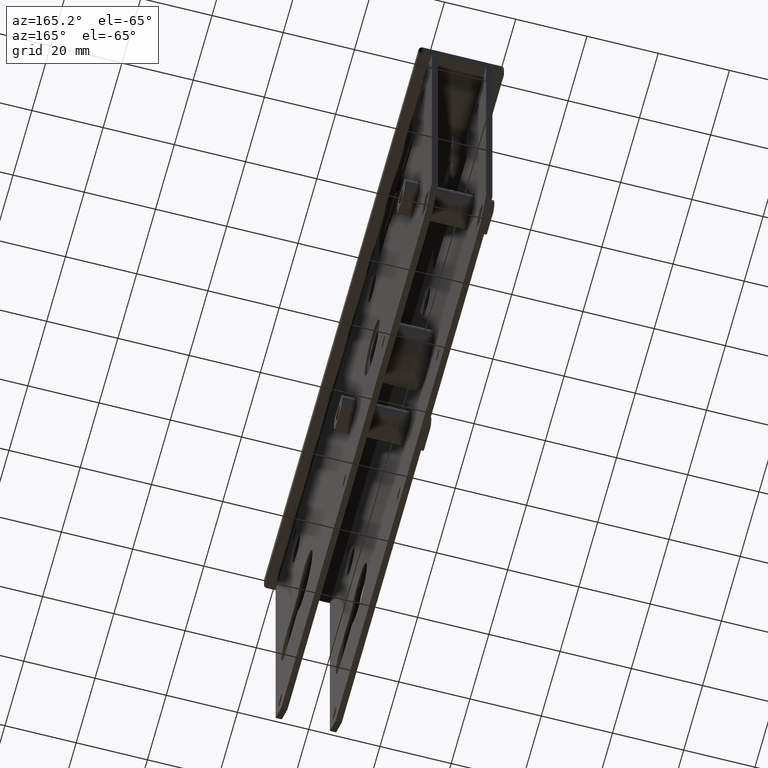
[diagram: clean part render]
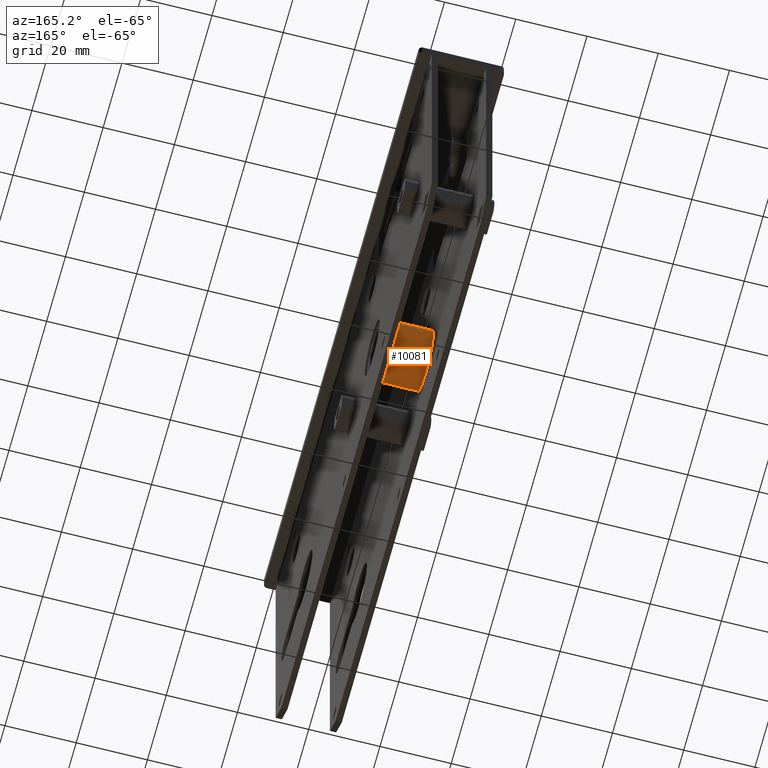
[diagram: same view with one face highlighted and labeled with its STEP entity id]
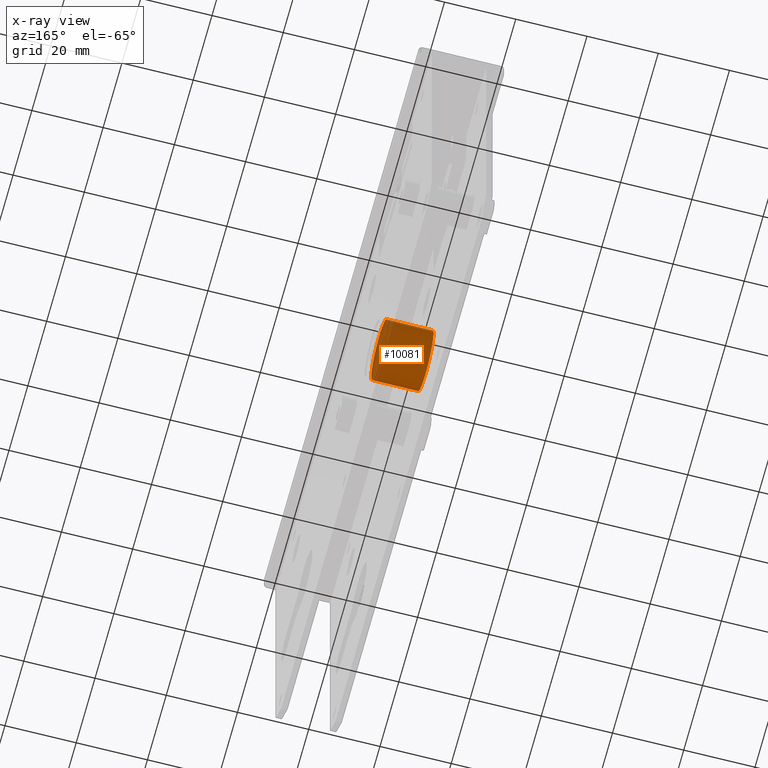
[diagram: x-ray of the same camera — body ghosted, the highlighted face saturated]
A machine part, auxiliary view. The second image highlights one B-rep face of the part: STEP entity #10081.
The next image is the same camera in x-ray: the body ghosted, the highlighted face saturated — about 23% of this face is hidden behind the body in this view.
In plain terms, the highlighted cylindrical surface (bore or boss wall) has radius 8.5 mm, axis along (-1, -0, -0).
Its self-contained STEP definition (entity closure, byte-faithful):
#374 = EDGE_CURVE ( 'NONE', #11936, #11936, #511, .T. ) ;
#439 = FACE_OUTER_BOUND ( 'NONE', #7956, .T. ) ;
#511 = CIRCLE ( 'NONE', #2050, 8.500000000000000000 ) ;
#1729 = CARTESIAN_POINT ( 'NONE',  ( 6.500000000000000000, 0.000000000000000000, -8.500000000000000000 ) ) ;
#2050 = AXIS2_PLACEMENT_3D ( 'NONE', #13324, #19291, #11740 ) ;
#4769 = DIRECTION ( 'NONE',  ( 0.000000000000000000, 0.000000000000000000, 1.000000000000000000 ) ) ;
#5974 = DIRECTION ( 'NONE',  ( 0.000000000000000000, 0.000000000000000000, -1.000000000000000000 ) ) ;
#7306 = CARTESIAN_POINT ( 'NONE',  ( -6.500000000000000000, 0.000000000000000000, 0.000000000000000000 ) ) ;
#7956 = EDGE_LOOP ( 'NONE', ( #15830 ) ) ;
#8224 = CYLINDRICAL_SURFACE ( 'NONE', #9630, 8.500000000000000000 ) ;
#8337 = CIRCLE ( 'NONE', #15358, 8.500000000000000000 ) ;
#9630 = AXIS2_PLACEMENT_3D ( 'NONE', #13714, #18177, #4769 ) ;
#10081 = ADVANCED_FACE ( 'NONE', ( #10103, #439 ), #8224, .T. ) ;
#10103 = FACE_OUTER_BOUND ( 'NONE', #19292, .T. ) ;
#11740 = DIRECTION ( 'NONE',  ( 0.000000000000000000, 0.000000000000000000, -1.000000000000000000 ) ) ;
#11936 = VERTEX_POINT ( 'NONE', #1729 ) ;
#13324 = CARTESIAN_POINT ( 'NONE',  ( 6.500000000000000000, 0.000000000000000000, 0.000000000000000000 ) ) ;
#13699 = EDGE_CURVE ( 'NONE', #14669, #14669, #8337, .T. ) ;
#13714 = CARTESIAN_POINT ( 'NONE',  ( 6.500000000000000000, 0.000000000000000000, 0.000000000000000000 ) ) ;
#14056 = CARTESIAN_POINT ( 'NONE',  ( -6.500000000000000000, 0.000000000000000000, -8.500000000000000000 ) ) ;
#14669 = VERTEX_POINT ( 'NONE', #14056 ) ;
#14976 = DIRECTION ( 'NONE',  ( 1.000000000000000000, 0.000000000000000000, 0.000000000000000000 ) ) ;
#15358 = AXIS2_PLACEMENT_3D ( 'NONE', #7306, #14976, #5974 ) ;
#15830 = ORIENTED_EDGE ( 'NONE', *, *, #13699, .T. ) ;
#17382 = ORIENTED_EDGE ( 'NONE', *, *, #374, .F. ) ;
#18177 = DIRECTION ( 'NONE',  ( -1.000000000000000000, -0.000000000000000000, -0.000000000000000000 ) ) ;
#19291 = DIRECTION ( 'NONE',  ( 1.000000000000000000, 0.000000000000000000, 0.000000000000000000 ) ) ;
#19292 = EDGE_LOOP ( 'NONE', ( #17382 ) ) ;